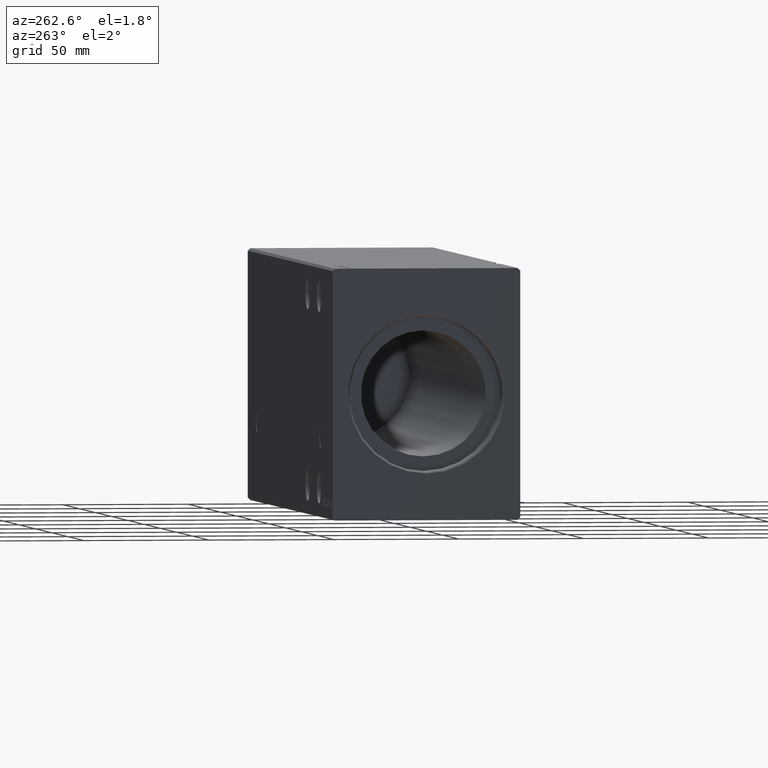
[diagram: clean part render]
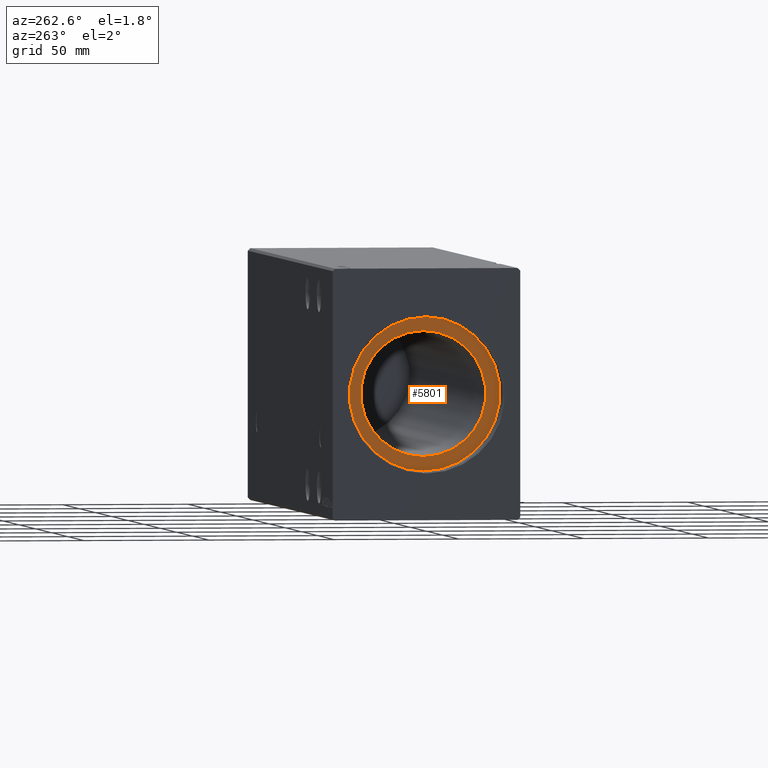
[diagram: same view with one face highlighted and labeled with its STEP entity id]
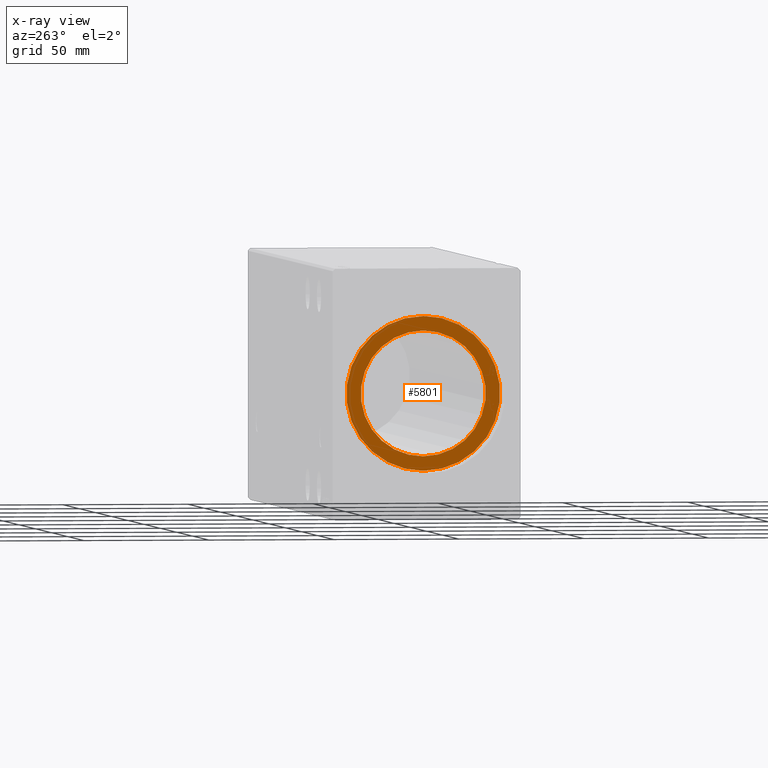
[diagram: x-ray of the same camera — body ghosted, the highlighted face saturated]
A machine part, auxiliary view. The second image highlights one B-rep face of the part: STEP entity #5801.
The next image is the same camera in x-ray: the body ghosted, the highlighted face saturated — about 0% of this face is hidden behind the body in this view.
In plain terms, the highlighted planar face has unit normal (-1, 0, 0).
Its self-contained STEP definition (entity closure, byte-faithful):
#224 = CIRCLE ( 'NONE', #30784, 25.00000000000000000 ) ;
#1756 = CARTESIAN_POINT ( 'NONE',  ( 10.00000000000000000, 0.000000000000000000, 0.000000000000000000 ) ) ;
#4846 = ORIENTED_EDGE ( 'NONE', *, *, #35076, .T. ) ;
#4851 = DIRECTION ( 'NONE',  ( 0.000000000000000000, 0.000000000000000000, 1.000000000000000000 ) ) ;
#5801 = ADVANCED_FACE ( 'NONE', ( #32435, #6294 ), #22243, .T. ) ;
#6294 = FACE_OUTER_BOUND ( 'NONE', #28092, .T. ) ;
#7023 = CARTESIAN_POINT ( 'NONE',  ( 10.00000000000000000, 3.765788907378111328E-15, -30.75000000000000355 ) ) ;
#7842 = EDGE_LOOP ( 'NONE', ( #34360, #29802 ) ) ;
#8895 = CIRCLE ( 'NONE', #12299, 30.75000000000000355 ) ;
#9364 = EDGE_CURVE ( 'NONE', #13349, #36280, #8895, .T. ) ;
#9893 = DIRECTION ( 'NONE',  ( 0.000000000000000000, 0.000000000000000000, 1.000000000000000000 ) ) ;
#12299 = AXIS2_PLACEMENT_3D ( 'NONE', #21229, #21434, #4851 ) ;
#13349 = VERTEX_POINT ( 'NONE', #7023 ) ;
#14152 = CIRCLE ( 'NONE', #37926, 30.75000000000000355 ) ;
#16157 = CARTESIAN_POINT ( 'NONE',  ( 10.00000000000000000, 0.000000000000000000, 30.75000000000000355 ) ) ;
#16288 = DIRECTION ( 'NONE',  ( 0.000000000000000000, 0.000000000000000000, 1.000000000000000000 ) ) ;
#19062 = DIRECTION ( 'NONE',  ( -1.000000000000000000, 0.000000000000000000, 0.000000000000000000 ) ) ;
#19148 = DIRECTION ( 'NONE',  ( -1.000000000000000000, 0.000000000000000000, 0.000000000000000000 ) ) ;
#19626 = CIRCLE ( 'NONE', #38627, 25.00000000000000000 ) ;
#20903 = DIRECTION ( 'NONE',  ( -1.000000000000000000, 0.000000000000000000, 0.000000000000000000 ) ) ;
#21229 = CARTESIAN_POINT ( 'NONE',  ( 10.00000000000000000, 0.000000000000000000, 0.000000000000000000 ) ) ;
#21434 = DIRECTION ( 'NONE',  ( -1.000000000000000000, 0.000000000000000000, 0.000000000000000000 ) ) ;
#22243 = PLANE ( 'NONE',  #25812 ) ;
#22338 = CARTESIAN_POINT ( 'NONE',  ( 10.00000000000000888, 0.000000000000000000, 0.000000000000000000 ) ) ;
#25443 = CARTESIAN_POINT ( 'NONE',  ( 10.00000000000000888, 0.000000000000000000, 0.000000000000000000 ) ) ;
#25812 = AXIS2_PLACEMENT_3D ( 'NONE', #26270, #38396, #9893 ) ;
#26270 = CARTESIAN_POINT ( 'NONE',  ( 10.00000000000000000, 0.000000000000000000, 0.000000000000000000 ) ) ;
#28092 = EDGE_LOOP ( 'NONE', ( #4846, #37662 ) ) ;
#28716 = VERTEX_POINT ( 'NONE', #30838 ) ;
#29802 = ORIENTED_EDGE ( 'NONE', *, *, #32782, .F. ) ;
#30684 = DIRECTION ( 'NONE',  ( 0.000000000000000000, 0.000000000000000000, 1.000000000000000000 ) ) ;
#30784 = AXIS2_PLACEMENT_3D ( 'NONE', #25443, #19062, #16288 ) ;
#30838 = CARTESIAN_POINT ( 'NONE',  ( 10.00000000000000888, 0.000000000000000000, 25.00000000000000000 ) ) ;
#32435 = FACE_BOUND ( 'NONE', #7842, .T. ) ;
#32782 = EDGE_CURVE ( 'NONE', #33002, #28716, #224, .T. ) ;
#33002 = VERTEX_POINT ( 'NONE', #37083 ) ;
#34360 = ORIENTED_EDGE ( 'NONE', *, *, #36188, .F. ) ;
#35076 = EDGE_CURVE ( 'NONE', #36280, #13349, #14152, .T. ) ;
#36188 = EDGE_CURVE ( 'NONE', #28716, #33002, #19626, .T. ) ;
#36280 = VERTEX_POINT ( 'NONE', #16157 ) ;
#37083 = CARTESIAN_POINT ( 'NONE',  ( 10.00000000000000888, 3.061616997868382254E-15, -25.00000000000000000 ) ) ;
#37662 = ORIENTED_EDGE ( 'NONE', *, *, #9364, .T. ) ;
#37858 = DIRECTION ( 'NONE',  ( 0.000000000000000000, 0.000000000000000000, 1.000000000000000000 ) ) ;
#37926 = AXIS2_PLACEMENT_3D ( 'NONE', #1756, #20903, #30684 ) ;
#38396 = DIRECTION ( 'NONE',  ( -1.000000000000000000, 0.000000000000000000, 0.000000000000000000 ) ) ;
#38627 = AXIS2_PLACEMENT_3D ( 'NONE', #22338, #19148, #37858 ) ;